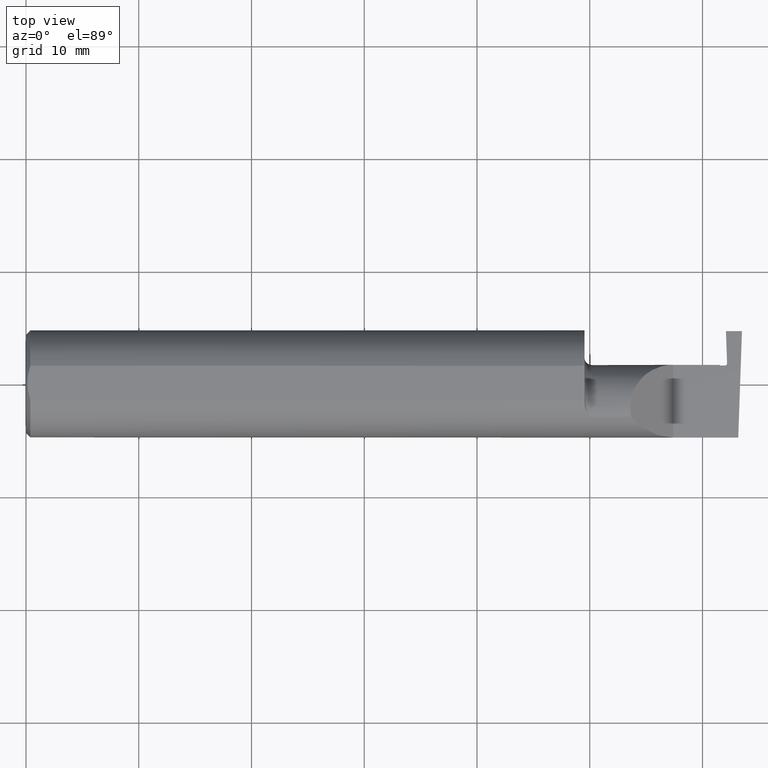
[diagram: clean part render]
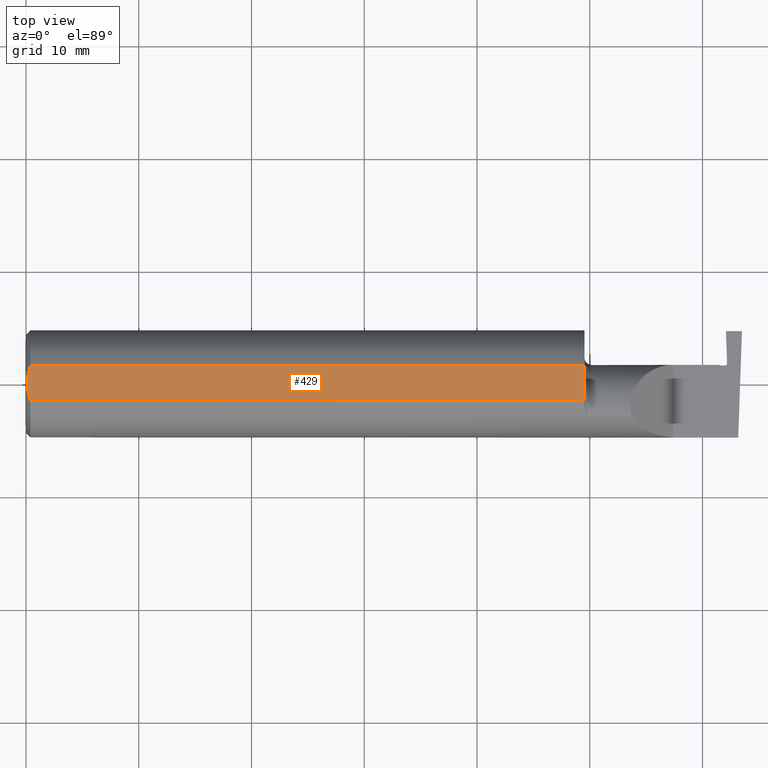
[diagram: same view with one face highlighted and labeled with its STEP entity id]
A machine part, top view. The second image highlights one B-rep face of the part: STEP entity #429.
In plain terms, the highlighted planar face has unit normal (0, -0, 1).
Its self-contained STEP definition (entity closure, byte-faithful):
#27 = FACE_OUTER_BOUND ( 'NONE', #838, .T. ) ;
#33 = EDGE_CURVE ( 'NONE', #1036, #466, #882, .T. ) ;
#61 = EDGE_CURVE ( 'NONE', #466, #532, #879, .T. ) ;
#73 = CARTESIAN_POINT ( 'NONE',  ( 0.01499999999999999944, -0.06039039658753697637, 0.1773499999999999799 ) ) ;
#85 = ORIENTED_EDGE ( 'NONE', *, *, #33, .T. ) ;
#89 = CARTESIAN_POINT ( 'NONE',  ( 0.01499999999999756042, 0.06039039658754215278, 0.1773499999999999799 ) ) ;
#121 = VERTEX_POINT ( 'NONE', #89 ) ;
#148 = VECTOR ( 'NONE', #732, 39.37007874015748143 ) ;
#152 = CARTESIAN_POINT ( 'NONE',  ( 0.005896899252109314912, -0.02043863390046160924, 0.1773500000000000354 ) ) ;
#157 = EDGE_CURVE ( 'NONE', #310, #121, #490, .T. ) ;
#186 = EDGE_CURVE ( 'NONE', #121, #1036, #985, .T. ) ;
#228 = CARTESIAN_POINT ( 'NONE',  ( 0.01186375298701897348, -0.05066077215909271098, 0.1773499999999999799 ) ) ;
#241 = PLANE ( 'NONE',  #425 ) ;
#307 = CARTESIAN_POINT ( 'NONE',  ( 0.009318557230853204490, -0.04061090184993776386, 0.1773499999999999799 ) ) ;
#310 = VERTEX_POINT ( 'NONE', #597 ) ;
#329 = DIRECTION ( 'NONE',  ( 1.000000000000000000, 0.000000000000000000, -0.000000000000000000 ) ) ;
#360 = ORIENTED_EDGE ( 'NONE', *, *, #157, .T. ) ;
#395 = CARTESIAN_POINT ( 'NONE',  ( 0.004999999999999833571, -0.01026662907944655458, 0.1773499999999999521 ) ) ;
#419 = CARTESIAN_POINT ( 'NONE',  ( 0.000000000000000000, 0.06039039658753697637, 0.1773499999999999799 ) ) ;
#425 = AXIS2_PLACEMENT_3D ( 'NONE', #579, #507, #329 ) ;
#429 = ADVANCED_FACE ( 'NONE', ( #27 ), #241, .T. ) ;
#437 = LINE ( 'NONE', #835, #819 ) ;
#449 = CARTESIAN_POINT ( 'NONE',  ( 0.004999999999999835305, 2.941982542510190671E-17, 0.1773499999999999799 ) ) ;
#466 = VERTEX_POINT ( 'NONE', #960 ) ;
#477 = DIRECTION ( 'NONE',  ( 1.000000000000000000, 0.000000000000000000, 0.000000000000000000 ) ) ;
#490 = LINE ( 'NONE', #419, #148 ) ;
#507 = DIRECTION ( 'NONE',  ( 0.000000000000000000, -0.000000000000000000, 1.000000000000000000 ) ) ;
#526 = CARTESIAN_POINT ( 'NONE',  ( 0.01499999999999756042, 0.06039039658754215278, 0.1773499999999999799 ) ) ;
#532 = VERTEX_POINT ( 'NONE', #895 ) ;
#579 = CARTESIAN_POINT ( 'NONE',  ( 2.500000000000000000, -0.1873500000000000165, 0.1773499999999999799 ) ) ;
#597 = CARTESIAN_POINT ( 'NONE',  ( 1.949999999999999956, 0.06039039658754216666, 0.1773499999999999799 ) ) ;
#655 = VECTOR ( 'NONE', #477, 39.37007874015748143 ) ;
#732 = DIRECTION ( 'NONE',  ( -1.000000000000000000, -0.000000000000000000, -0.000000000000000000 ) ) ;
#739 = ORIENTED_EDGE ( 'NONE', *, *, #61, .T. ) ;
#743 = DIRECTION ( 'NONE',  ( -0.000000000000000000, 1.000000000000000000, 0.000000000000000000 ) ) ;
#765 = CARTESIAN_POINT ( 'NONE',  ( 0.01185291896084217714, 0.05062716160312498437, 0.1773499999999999521 ) ) ;
#768 = CARTESIAN_POINT ( 'NONE',  ( 0.004999999999999839642, 0.01027925662263861305, 0.1773499999999999799 ) ) ;
#819 = VECTOR ( 'NONE', #743, 39.37007874015748143 ) ;
#835 = CARTESIAN_POINT ( 'NONE',  ( 1.949999999999999956, -0.1873500000000000165, 0.1773499999999999799 ) ) ;
#838 = EDGE_LOOP ( 'NONE', ( #739, #929, #360, #1006, #85 ) ) ;
#872 = CARTESIAN_POINT ( 'NONE',  ( 0.004999999999999835305, 2.941982542510190671E-17, 0.1773499999999999799 ) ) ;
#879 = LINE ( 'NONE', #1028, #655 ) ;
#882 = B_SPLINE_CURVE_WITH_KNOTS ( 'NONE', 3,
 ( #872, #395, #152, #307, #228, #73 ),
 .UNSPECIFIED., .F., .F.,
 ( 4, 2, 4 ),
 ( 0.005750933109916887831, 0.006521788775031543001, 0.007292644440146199038 ),
 .UNSPECIFIED. ) ;
#895 = CARTESIAN_POINT ( 'NONE',  ( 1.949999999999999956, -0.06039039658753699025, 0.1773499999999999799 ) ) ;
#920 = CARTESIAN_POINT ( 'NONE',  ( 0.009346310357820472939, 0.04072930668827419443, 0.1773500000000000354 ) ) ;
#923 = CARTESIAN_POINT ( 'NONE',  ( 0.004999999999999835305, 2.941982542510190671E-17, 0.1773499999999999799 ) ) ;
#928 = EDGE_CURVE ( 'NONE', #532, #310, #437, .T. ) ;
#929 = ORIENTED_EDGE ( 'NONE', *, *, #928, .T. ) ;
#960 = CARTESIAN_POINT ( 'NONE',  ( 0.01499999999999999944, -0.06039039658753697637, 0.1773499999999999799 ) ) ;
#985 = B_SPLINE_CURVE_WITH_KNOTS ( 'NONE', 3,
 ( #526, #765, #920, #1014, #768, #923 ),
 .UNSPECIFIED., .F., .F.,
 ( 4, 2, 4 ),
 ( 0.004207325536406422359, 0.004979129323161655095, 0.005750933109916887831 ),
 .UNSPECIFIED. ) ;
#1006 = ORIENTED_EDGE ( 'NONE', *, *, #186, .T. ) ;
#1014 = CARTESIAN_POINT ( 'NONE',  ( 0.005916828623699125177, 0.02060071390057613763, 0.1773499999999999799 ) ) ;
#1028 = CARTESIAN_POINT ( 'NONE',  ( 0.000000000000000000, -0.06039039658753697637, 0.1773499999999999799 ) ) ;
#1036 = VERTEX_POINT ( 'NONE', #449 ) ;